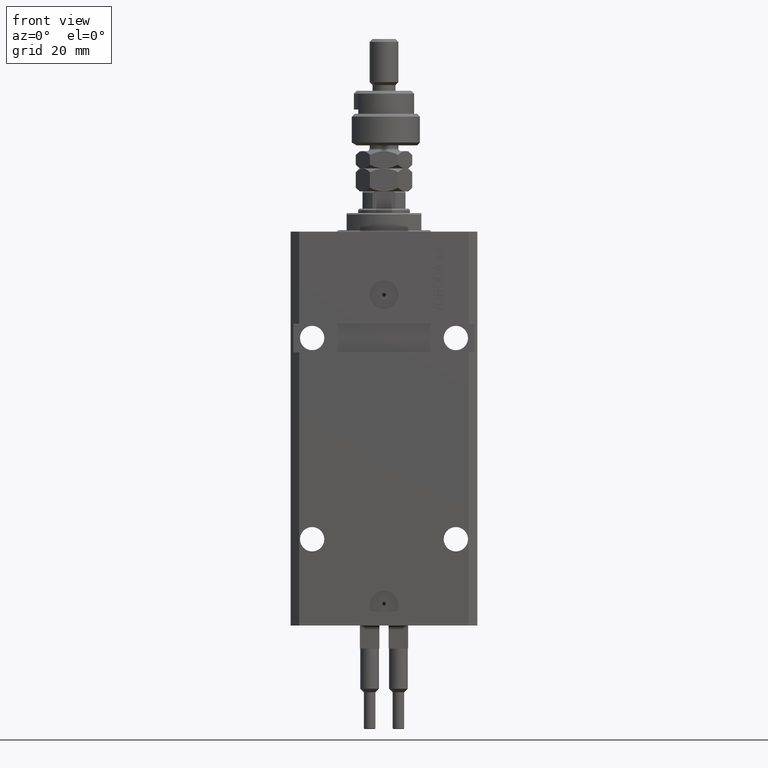
[diagram: clean part render]
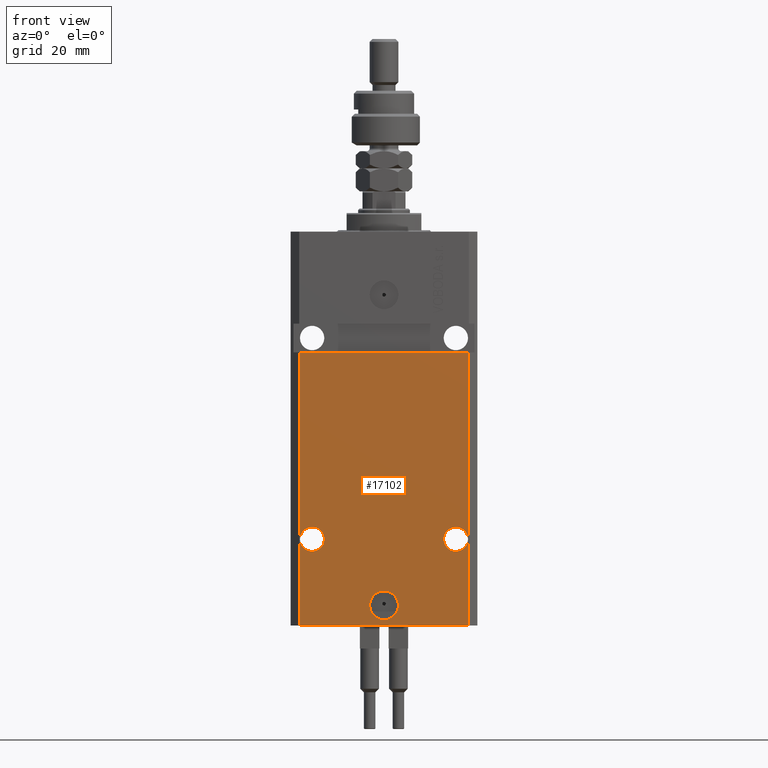
[diagram: same view with one face highlighted and labeled with its STEP entity id]
A machine part, front view. The second image highlights one B-rep face of the part: STEP entity #17102.
In plain terms, the highlighted planar face has unit normal (0, -1, 0).
Its self-contained STEP definition (entity closure, byte-faithful):
#2491 = EDGE_LOOP ( 'NONE', ( #26311, #4648 ) ) ;
#2805 = VERTEX_POINT ( 'NONE', #18990 ) ;
#4004 = EDGE_LOOP ( 'NONE', ( #4568, #5431 ) ) ;
#4459 = CARTESIAN_POINT ( 'NONE',  ( -29.49999999999650413, -22.49999999999949907, -137.0000000000000000 ) ) ;
#4568 = ORIENTED_EDGE ( 'NONE', *, *, #18323, .F. ) ;
#4581 = CARTESIAN_POINT ( 'NONE',  ( -29.49999999999650413, -22.49999999999949907, -41.99999999999999289 ) ) ;
#4648 = ORIENTED_EDGE ( 'NONE', *, *, #42340, .F. ) ;
#5136 = CARTESIAN_POINT ( 'NONE',  ( 20.75000000001096012, -22.49999999999949196, -107.0000000000000000 ) ) ;
#5247 = CIRCLE ( 'NONE', #9441, 4.249999999989050536 ) ;
#5431 = ORIENTED_EDGE ( 'NONE', *, *, #17996, .F. ) ;
#5760 = DIRECTION ( 'NONE',  ( 1.176083712526788232E-16, -1.000000000000000000, 0.000000000000000000 ) ) ;
#6478 = VECTOR ( 'NONE', #7678, 1000.000000000000000 ) ;
#7632 = DIRECTION ( 'NONE',  ( 1.176083712526788232E-16, -1.000000000000000000, 0.000000000000000000 ) ) ;
#7678 = DIRECTION ( 'NONE',  ( 1.000000000000000000, 1.176083712526788232E-16, 0.000000000000000000 ) ) ;
#7796 = ORIENTED_EDGE ( 'NONE', *, *, #47055, .F. ) ;
#8252 = VERTEX_POINT ( 'NONE', #44091 ) ;
#8350 = EDGE_CURVE ( 'NONE', #20091, #35513, #36191, .T. ) ;
#8426 = VERTEX_POINT ( 'NONE', #22041 ) ;
#8803 = CARTESIAN_POINT ( 'NONE',  ( 29.24999999998906119, -22.49999999999949196, -107.0000000000000000 ) ) ;
#9441 = AXIS2_PLACEMENT_3D ( 'NONE', #13412, #26275, #38350 ) ;
#9672 = AXIS2_PLACEMENT_3D ( 'NONE', #14589, #30606, #46593 ) ;
#10254 = DIRECTION ( 'NONE',  ( 1.176083712526788232E-16, -1.000000000000000000, 0.000000000000000000 ) ) ;
#11886 = AXIS2_PLACEMENT_3D ( 'NONE', #13377, #48547, #44352 ) ;
#11980 = CIRCLE ( 'NONE', #21191, 5.000000000000006217 ) ;
#12552 = VERTEX_POINT ( 'NONE', #25396 ) ;
#13377 = CARTESIAN_POINT ( 'NONE',  ( -25.00000000000000355, -22.49999999999949907, -107.0000000000000000 ) ) ;
#13412 = CARTESIAN_POINT ( 'NONE',  ( -25.00000000000000355, -22.49999999999949907, -107.0000000000000000 ) ) ;
#14589 = CARTESIAN_POINT ( 'NONE',  ( 25.00000000000001066, -22.49999999999949196, -107.0000000000000000 ) ) ;
#14680 = CIRCLE ( 'NONE', #9672, 4.249999999989050536 ) ;
#15530 = VERTEX_POINT ( 'NONE', #49948 ) ;
#15705 = VECTOR ( 'NONE', #39002, 1000.000000000000000 ) ;
#16004 = DIRECTION ( 'NONE',  ( 1.000000000000000000, 0.000000000000000000, 0.000000000000000000 ) ) ;
#16051 = EDGE_CURVE ( 'NONE', #8252, #21460, #31495, .T. ) ;
#16262 = CARTESIAN_POINT ( 'NONE',  ( 2.646188353185214061E-15, -22.49999999999949551, -130.0000000000000000 ) ) ;
#16511 = DIRECTION ( 'NONE',  ( 0.000000000000000000, 0.000000000000000000, 1.000000000000000000 ) ) ;
#17102 = ADVANCED_FACE ( 'NONE', ( #34782, #23475, #18761, #19016 ), #42891, .T. ) ;
#17547 = DIRECTION ( 'NONE',  ( 1.000000000000000000, 0.000000000000000000, 0.000000000000000000 ) ) ;
#17996 = EDGE_CURVE ( 'NONE', #43122, #19517, #38110, .T. ) ;
#18323 = EDGE_CURVE ( 'NONE', #19517, #43122, #14680, .T. ) ;
#18761 = FACE_BOUND ( 'NONE', #33976, .T. ) ;
#18990 = CARTESIAN_POINT ( 'NONE',  ( -5.000000000000003553, -22.49999999999949551, -130.0000000000000000 ) ) ;
#19016 = FACE_OUTER_BOUND ( 'NONE', #29092, .T. ) ;
#19517 = VERTEX_POINT ( 'NONE', #8803 ) ;
#20091 = VERTEX_POINT ( 'NONE', #21268 ) ;
#20710 = CARTESIAN_POINT ( 'NONE',  ( 29.49999999999650413, -22.49999999999949196, -137.0000000000000000 ) ) ;
#21191 = AXIS2_PLACEMENT_3D ( 'NONE', #46180, #10254, #27016 ) ;
#21268 = CARTESIAN_POINT ( 'NONE',  ( -20.75000000001095302, -22.49999999999949907, -107.0000000000000000 ) ) ;
#21460 = VERTEX_POINT ( 'NONE', #4581 ) ;
#22041 = CARTESIAN_POINT ( 'NONE',  ( 5.000000000000008882, -22.49999999999949551, -130.0000000000000000 ) ) ;
#23475 = FACE_BOUND ( 'NONE', #4004, .T. ) ;
#24374 = LINE ( 'NONE', #20710, #34793 ) ;
#24673 = AXIS2_PLACEMENT_3D ( 'NONE', #44843, #5760, #17547 ) ;
#25014 = ORIENTED_EDGE ( 'NONE', *, *, #16051, .F. ) ;
#25396 = CARTESIAN_POINT ( 'NONE',  ( 29.49999999999650413, -22.49999999999949196, -137.0000000000000000 ) ) ;
#25463 = VECTOR ( 'NONE', #16511, 1000.000000000000000 ) ;
#26275 = DIRECTION ( 'NONE',  ( 1.176083712526788232E-16, -1.000000000000000000, 0.000000000000000000 ) ) ;
#26311 = ORIENTED_EDGE ( 'NONE', *, *, #32231, .F. ) ;
#27016 = DIRECTION ( 'NONE',  ( 1.000000000000000000, 0.000000000000000000, 0.000000000000000000 ) ) ;
#27028 = ORIENTED_EDGE ( 'NONE', *, *, #31055, .F. ) ;
#29092 = EDGE_LOOP ( 'NONE', ( #7796, #25014, #45523, #47339 ) ) ;
#30606 = DIRECTION ( 'NONE',  ( 1.176083712526788232E-16, -1.000000000000000000, 0.000000000000000000 ) ) ;
#30842 = DIRECTION ( 'NONE',  ( 1.176083712526788232E-16, -1.000000000000000000, 0.000000000000000000 ) ) ;
#31055 = EDGE_CURVE ( 'NONE', #35513, #20091, #5247, .T. ) ;
#31495 = LINE ( 'NONE', #4459, #25463 ) ;
#31559 = CIRCLE ( 'NONE', #39943, 5.000000000000006217 ) ;
#32231 = EDGE_CURVE ( 'NONE', #8426, #2805, #11980, .T. ) ;
#33976 = EDGE_LOOP ( 'NONE', ( #36288, #27028 ) ) ;
#34782 = FACE_BOUND ( 'NONE', #2491, .T. ) ;
#34793 = VECTOR ( 'NONE', #43546, 1000.000000000000000 ) ;
#35043 = CARTESIAN_POINT ( 'NONE',  ( -29.49999999999650413, -22.49999999999949907, -137.0000000000000000 ) ) ;
#35231 = LINE ( 'NONE', #39426, #6478 ) ;
#35513 = VERTEX_POINT ( 'NONE', #49574 ) ;
#36191 = CIRCLE ( 'NONE', #11886, 4.249999999989050536 ) ;
#36288 = ORIENTED_EDGE ( 'NONE', *, *, #8350, .F. ) ;
#37976 = CARTESIAN_POINT ( 'NONE',  ( -32.49999999999650413, -22.49999999999949907, -41.99999999999999289 ) ) ;
#38110 = CIRCLE ( 'NONE', #24673, 4.249999999989050536 ) ;
#38350 = DIRECTION ( 'NONE',  ( -1.000000000000000000, 0.000000000000000000, 0.000000000000000000 ) ) ;
#39002 = DIRECTION ( 'NONE',  ( 1.000000000000000000, 1.067522139062765303E-16, 1.067522139062765303E-16 ) ) ;
#39275 = EDGE_CURVE ( 'NONE', #12552, #15530, #24374, .T. ) ;
#39426 = CARTESIAN_POINT ( 'NONE',  ( -29.49999999999650413, -22.49999999999949907, -137.0000000000000000 ) ) ;
#39943 = AXIS2_PLACEMENT_3D ( 'NONE', #16262, #7632, #16004 ) ;
#42340 = EDGE_CURVE ( 'NONE', #2805, #8426, #31559, .T. ) ;
#42891 = PLANE ( 'NONE',  #45616 ) ;
#43122 = VERTEX_POINT ( 'NONE', #5136 ) ;
#43546 = DIRECTION ( 'NONE',  ( 0.000000000000000000, 0.000000000000000000, 1.000000000000000000 ) ) ;
#43725 = EDGE_CURVE ( 'NONE', #8252, #12552, #35231, .T. ) ;
#44091 = CARTESIAN_POINT ( 'NONE',  ( -29.49999999999650413, -22.49999999999949907, -137.0000000000000000 ) ) ;
#44352 = DIRECTION ( 'NONE',  ( -1.000000000000000000, 0.000000000000000000, 0.000000000000000000 ) ) ;
#44843 = CARTESIAN_POINT ( 'NONE',  ( 25.00000000000001066, -22.49999999999949196, -107.0000000000000000 ) ) ;
#45523 = ORIENTED_EDGE ( 'NONE', *, *, #43725, .T. ) ;
#45616 = AXIS2_PLACEMENT_3D ( 'NONE', #35043, #30842, #51557 ) ;
#46180 = CARTESIAN_POINT ( 'NONE',  ( 2.646188353185214061E-15, -22.49999999999949551, -130.0000000000000000 ) ) ;
#46593 = DIRECTION ( 'NONE',  ( 1.000000000000000000, 0.000000000000000000, 0.000000000000000000 ) ) ;
#46866 = LINE ( 'NONE', #37976, #15705 ) ;
#47055 = EDGE_CURVE ( 'NONE', #21460, #15530, #46866, .T. ) ;
#47339 = ORIENTED_EDGE ( 'NONE', *, *, #39275, .T. ) ;
#48547 = DIRECTION ( 'NONE',  ( 1.176083712526788232E-16, -1.000000000000000000, 0.000000000000000000 ) ) ;
#49574 = CARTESIAN_POINT ( 'NONE',  ( -29.24999999998905409, -22.49999999999949907, -107.0000000000000000 ) ) ;
#49948 = CARTESIAN_POINT ( 'NONE',  ( 29.49999999999650058, -22.49999999999949196, -41.99999999999998579 ) ) ;
#51557 = DIRECTION ( 'NONE',  ( 1.000000000000000000, 1.176083712526788232E-16, 0.000000000000000000 ) ) ;